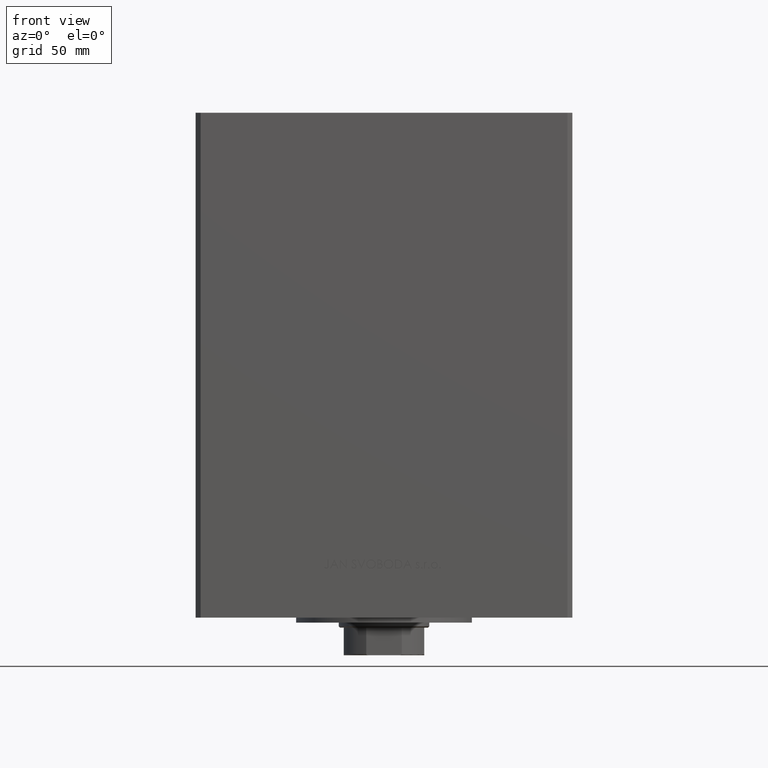
[diagram: clean part render]
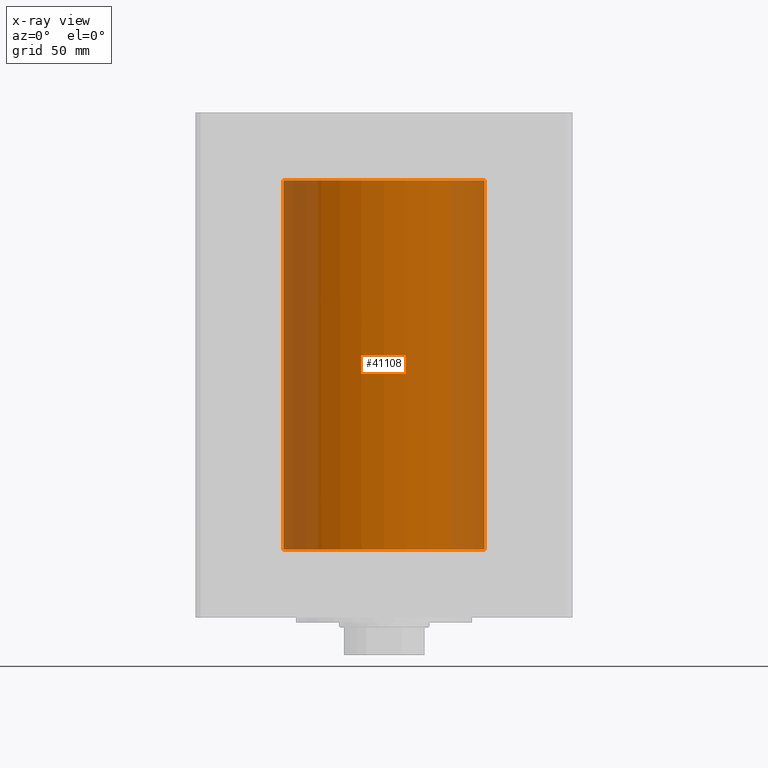
[diagram: x-ray — body ghosted, one internal face saturated and labeled with its STEP entity id]
A machine part, front view, then the same camera in x-ray: the body is ghosted and one INTERNAL B-rep face — a face not visible from any outside direction — is saturated and labeled: STEP entity #41108.
In plain terms, the highlighted cylindrical surface (partial cylindrical patch) has radius 40 mm, axis along (-0, -0, -1).
Its self-contained STEP definition (entity closure, byte-faithful):
#666 = EDGE_CURVE ( 'NONE', #3719, #46774, #33067, .T. ) ;
#1551 = FACE_OUTER_BOUND ( 'NONE', #43843, .T. ) ;
#3719 = VERTEX_POINT ( 'NONE', #38264 ) ;
#6265 = VERTEX_POINT ( 'NONE', #15111 ) ;
#6317 = DIRECTION ( 'NONE',  ( -0.000000000000000000, 0.000000000000000000, 1.000000000000000000 ) ) ;
#7125 = VERTEX_POINT ( 'NONE', #34686 ) ;
#8019 = EDGE_CURVE ( 'NONE', #6265, #46774, #28109, .T. ) ;
#10156 = LINE ( 'NONE', #40361, #47627 ) ;
#12305 = AXIS2_PLACEMENT_3D ( 'NONE', #16634, #46829, #12931 ) ;
#12486 = DIRECTION ( 'NONE',  ( 1.000000000000000000, 0.000000000000000000, 0.000000000000000000 ) ) ;
#12931 = DIRECTION ( 'NONE',  ( -1.000000000000000000, 0.000000000000000000, 0.000000000000000000 ) ) ;
#15111 = CARTESIAN_POINT ( 'NONE',  ( -40.00000000000000000, 0.000000000000000000, 0.000000000000000000 ) ) ;
#16634 = CARTESIAN_POINT ( 'NONE',  ( 0.000000000000000000, 0.000000000000000000, 147.0000000000000000 ) ) ;
#20156 = CARTESIAN_POINT ( 'NONE',  ( 0.000000000000000000, 0.000000000000000000, 147.0000000000000000 ) ) ;
#22214 = CARTESIAN_POINT ( 'NONE',  ( 40.00000000000000000, 4.898587196589413026E-15, 0.000000000000000000 ) ) ;
#24362 = EDGE_CURVE ( 'NONE', #7125, #3719, #37288, .T. ) ;
#24668 = ORIENTED_EDGE ( 'NONE', *, *, #8019, .F. ) ;
#25391 = ORIENTED_EDGE ( 'NONE', *, *, #666, .T. ) ;
#25626 = DIRECTION ( 'NONE',  ( 1.000000000000000000, 0.000000000000000000, 0.000000000000000000 ) ) ;
#26915 = EDGE_CURVE ( 'NONE', #7125, #6265, #10156, .T. ) ;
#27087 = VECTOR ( 'NONE', #47910, 1000.000000000000000 ) ;
#28109 = CIRCLE ( 'NONE', #30473, 40.00000000000000000 ) ;
#28798 = ORIENTED_EDGE ( 'NONE', *, *, #26915, .F. ) ;
#30473 = AXIS2_PLACEMENT_3D ( 'NONE', #47904, #6317, #25626 ) ;
#31776 = DIRECTION ( 'NONE',  ( -0.000000000000000000, 0.000000000000000000, 1.000000000000000000 ) ) ;
#32821 = CARTESIAN_POINT ( 'NONE',  ( 40.00000000000000000, 4.898587196589413026E-15, 147.0000000000000000 ) ) ;
#33067 = LINE ( 'NONE', #32821, #27087 ) ;
#34686 = CARTESIAN_POINT ( 'NONE',  ( -40.00000000000000000, 0.000000000000000000, 147.0000000000000000 ) ) ;
#35663 = DIRECTION ( 'NONE',  ( -0.000000000000000000, -0.000000000000000000, -1.000000000000000000 ) ) ;
#37288 = CIRCLE ( 'NONE', #43616, 40.00000000000000000 ) ;
#38264 = CARTESIAN_POINT ( 'NONE',  ( 40.00000000000000000, 4.898587196589413026E-15, 147.0000000000000000 ) ) ;
#40361 = CARTESIAN_POINT ( 'NONE',  ( -40.00000000000000000, 0.000000000000000000, 147.0000000000000000 ) ) ;
#41108 = ADVANCED_FACE ( 'NONE', ( #1551 ), #43869, .F. ) ;
#43616 = AXIS2_PLACEMENT_3D ( 'NONE', #20156, #31776, #12486 ) ;
#43843 = EDGE_LOOP ( 'NONE', ( #46460, #25391, #24668, #28798 ) ) ;
#43869 = CYLINDRICAL_SURFACE ( 'NONE', #12305, 40.00000000000000000 ) ;
#46460 = ORIENTED_EDGE ( 'NONE', *, *, #24362, .T. ) ;
#46774 = VERTEX_POINT ( 'NONE', #22214 ) ;
#46829 = DIRECTION ( 'NONE',  ( -0.000000000000000000, -0.000000000000000000, -1.000000000000000000 ) ) ;
#47627 = VECTOR ( 'NONE', #35663, 1000.000000000000000 ) ;
#47904 = CARTESIAN_POINT ( 'NONE',  ( 0.000000000000000000, 0.000000000000000000, 0.000000000000000000 ) ) ;
#47910 = DIRECTION ( 'NONE',  ( -0.000000000000000000, -0.000000000000000000, -1.000000000000000000 ) ) ;